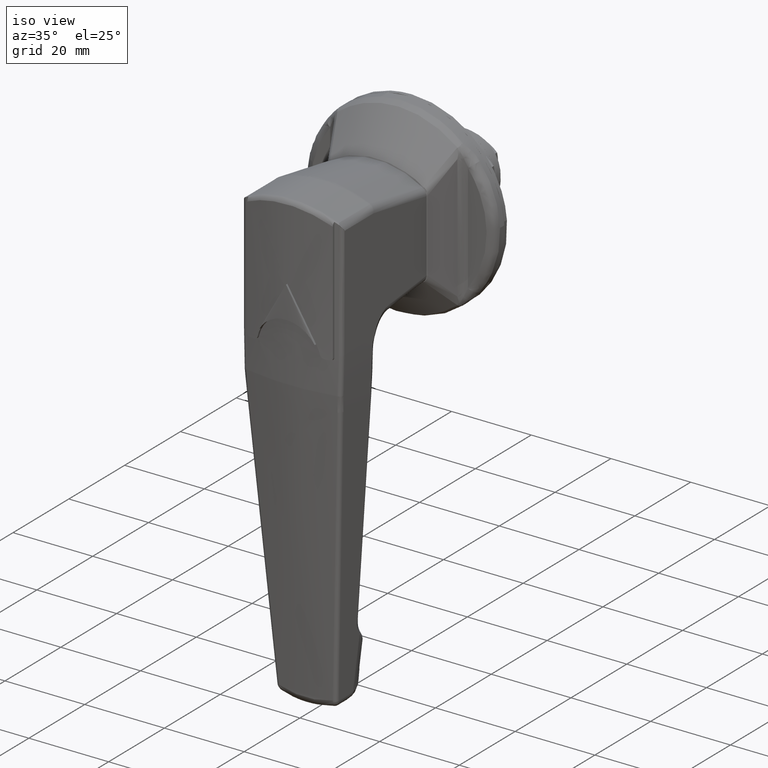
[diagram: clean part render]
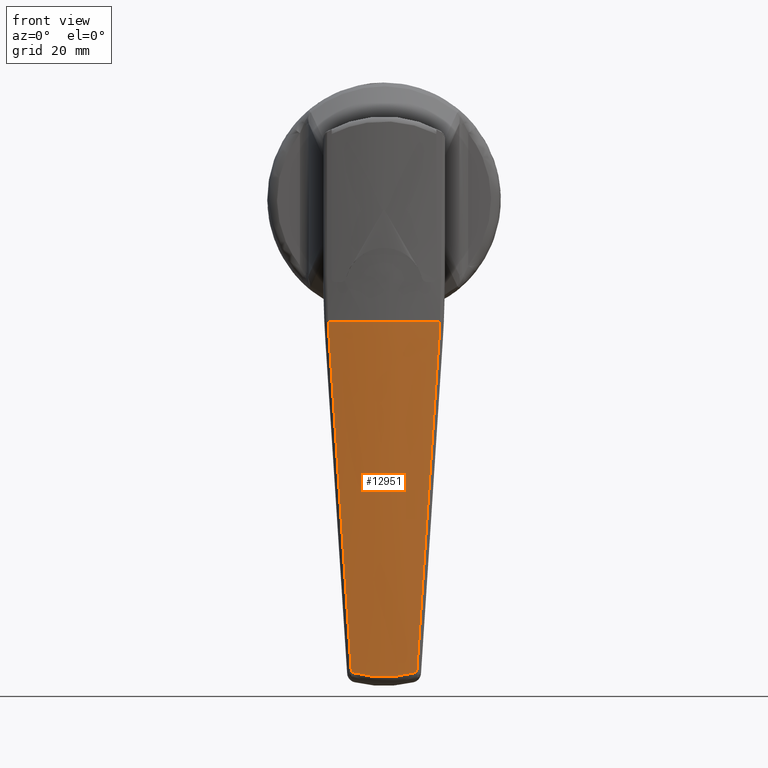
[diagram: tour spotlight — one face highlighted and labeled with its STEP entity id]
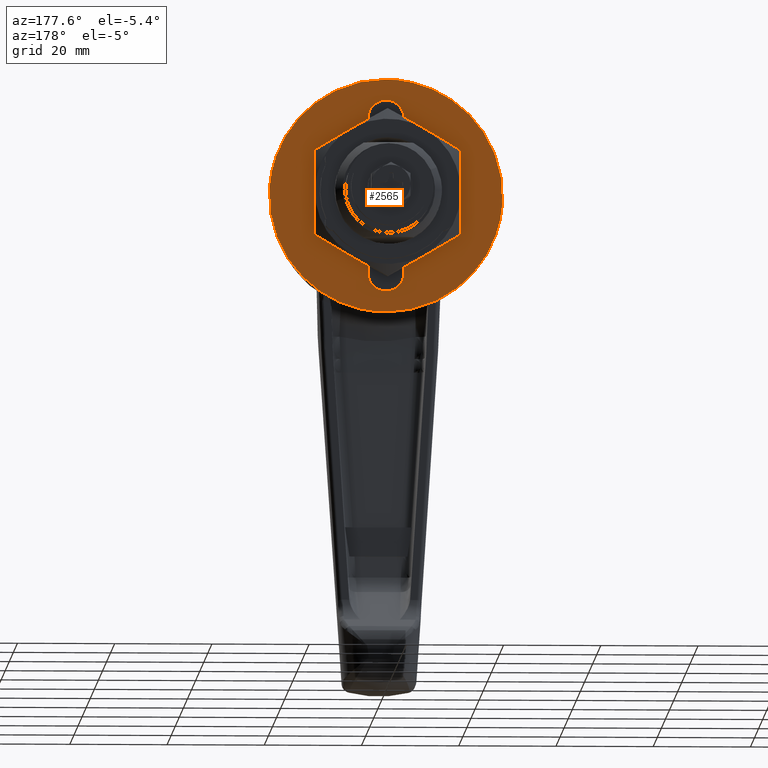
[diagram: tour spotlight — one face highlighted and labeled with its STEP entity id]
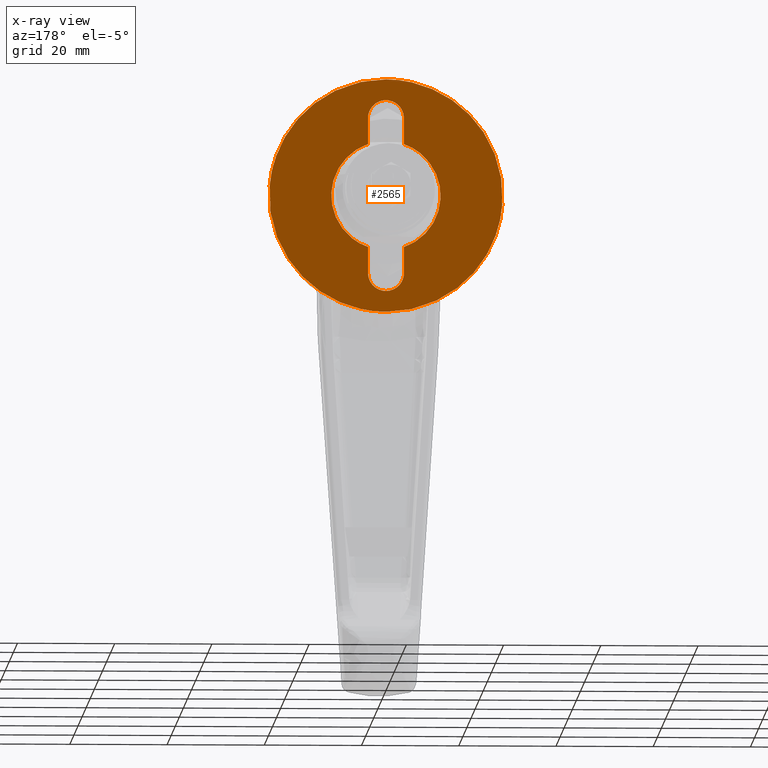
[diagram: x-ray of the same camera — body ghosted, this tour face saturated]
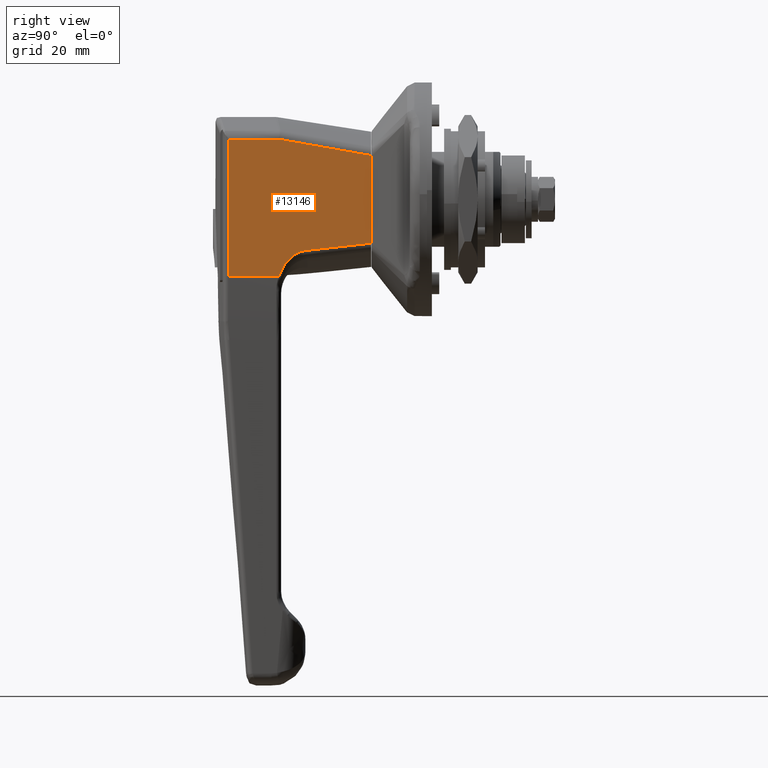
[diagram: tour spotlight — one face highlighted and labeled with its STEP entity id]
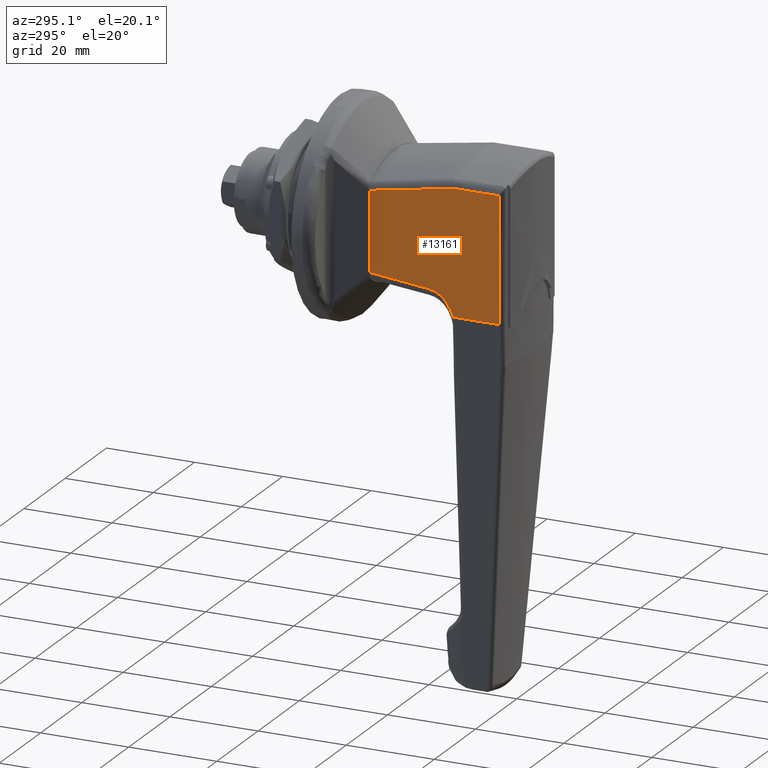
[diagram: tour spotlight — one face highlighted and labeled with its STEP entity id]
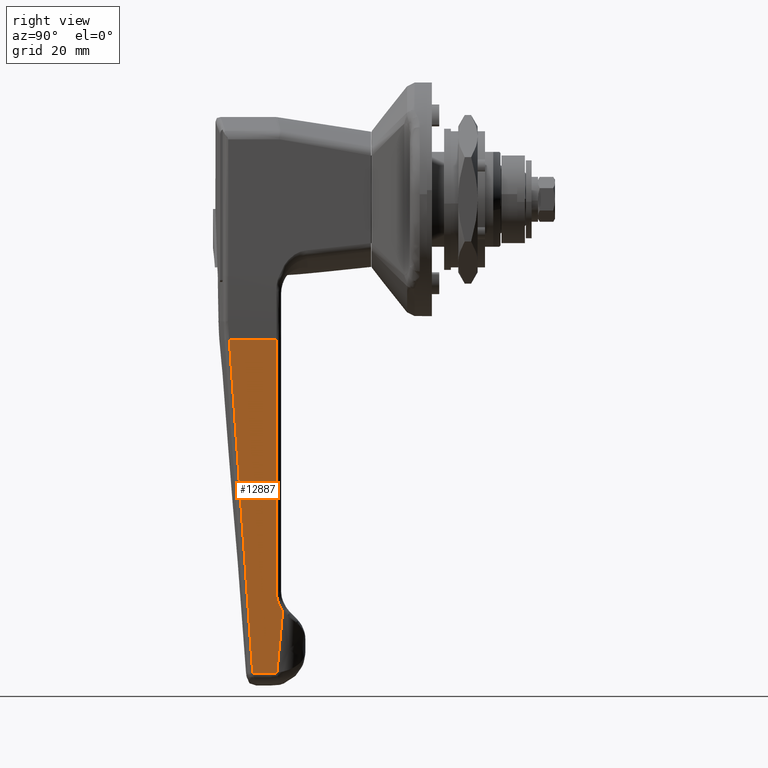
[diagram: tour spotlight — one face highlighted and labeled with its STEP entity id]
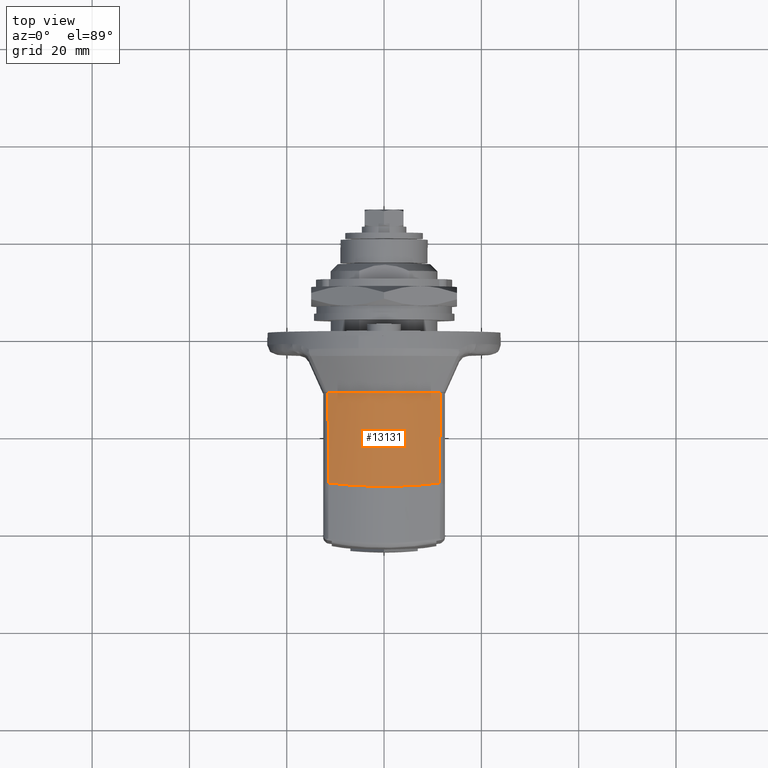
[diagram: tour spotlight — one face highlighted and labeled with its STEP entity id]
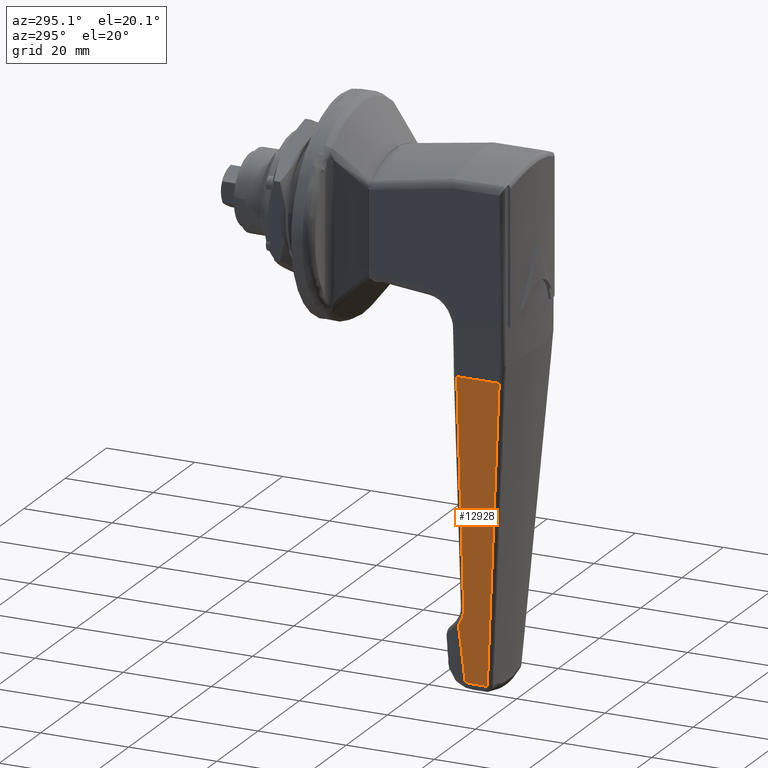
[diagram: tour spotlight — one face highlighted and labeled with its STEP entity id]
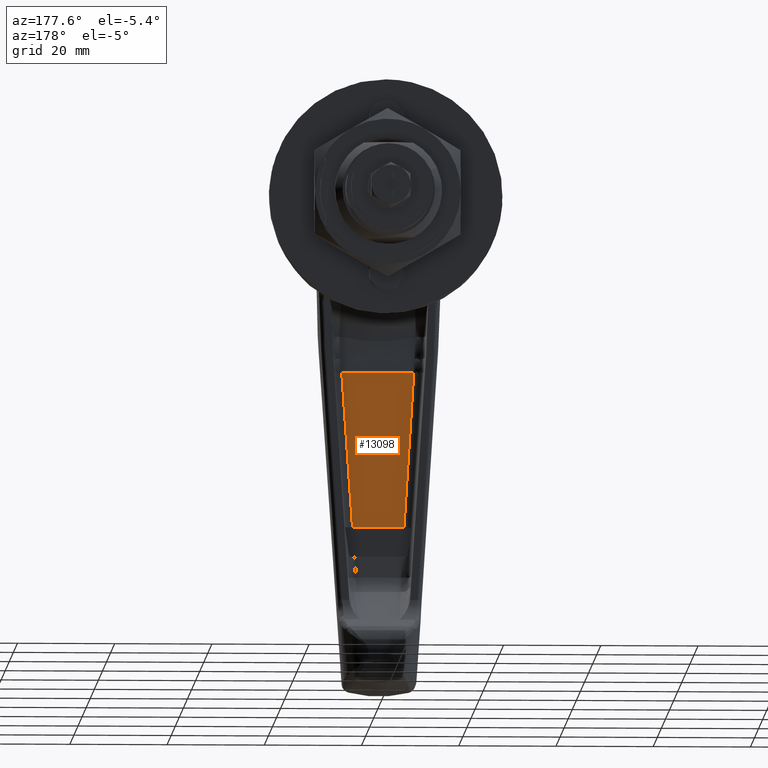
[diagram: tour spotlight — one face highlighted and labeled with its STEP entity id]
A machine part: a face-by-face anatomy tour. The part has 332 B-rep faces; the first image is the clean iso view, then the 8 largest visible faces are spotlighted one at a time (largest first), each with its STEP entity span.

Face 1 — front view, entity #12951. In plain terms, the highlighted face is a freeform B-spline surface patch.
Definition (entity closure, byte-faithful):
#7257=CARTESIAN_POINT('',(-37.843350285108812,6.721442861657440,-97.221635429455205));
#7258=VERTEX_POINT('',#7257);
#7504=CARTESIAN_POINT('',(-37.843350285108762,-6.721442861657480,-97.221635429455205));
#7505=VERTEX_POINT('',#7504);
#7513=CARTESIAN_POINT('',(-37.843350285108812,6.721442861657440,-97.221635429455205));
#7514=CARTESIAN_POINT('',(-37.942343935908319,5.625169215865836,-97.534044564430928));
#7515=CARTESIAN_POINT('',(-38.018337634325022,4.516814986065543,-97.767281904588913));
#7516=CARTESIAN_POINT('',(-38.120764619877200,2.276422541191168,-98.079988281250976));
#7517=CARTESIAN_POINT('',(-38.147213888095500,1.144385008516285,-98.159457032877555));
#7518=CARTESIAN_POINT('',(-38.147216049215537,-1.144244768731521,-98.159463559908417));
#7519=CARTESIAN_POINT('',(-38.120766742579022,-2.276364652141864,-98.079994726793331));
#7520=CARTESIAN_POINT('',(-38.018338691943342,-4.516803311401072,-97.767285168462976));
#7521=CARTESIAN_POINT('',(-37.942343958184708,-5.625168969172814,-97.534044634731913));
#7522=CARTESIAN_POINT('',(-37.843350285108812,-6.721442861657482,-97.221635429455205));
#7523=B_SPLINE_CURVE_WITH_KNOTS('',3,(#7513,#7514,#7515,#7516,#7517,#7518,#7519,#7520,#7521,#7522),.UNSPECIFIED.,.F.,.U.,(4,2,2,2,4),(0.0,0.250000000000000,0.500000000000000,0.750000000000000,1.0),.UNSPECIFIED.);
#7524=EDGE_CURVE('',#7258,#7505,#7523,.T.);
#8258=CARTESIAN_POINT('',(-42.878764277605747,-11.479719629846400,-25.101466616764949));
#8259=VERTEX_POINT('',#8258);
#8290=CARTESIAN_POINT('',(-42.878764277605747,11.479719629846400,-25.101466616764949));
#8291=VERTEX_POINT('',#8290);
#8305=CARTESIAN_POINT('',(-42.878764277605747,-11.479719629846400,-25.101466616764949));
#8306=CARTESIAN_POINT('',(-45.116384859345537,-1.335737E-013,-25.192300907368548));
#8307=CARTESIAN_POINT('',(-42.878764277605782,11.479719629846370,-25.101466616764981));
#8315=(BOUNDED_CURVE()B_SPLINE_CURVE(2,(#8305,#8306,#8307),.UNSPECIFIED.,.F.,.U.)CURVE()GEOMETRIC_REPRESENTATION_ITEM()QUASI_UNIFORM_CURVE()RATIONAL_B_SPLINE_CURVE((1.0,0.981526028015691,1.0))REPRESENTATION_ITEM(''));
#8316=EDGE_CURVE('',#8259,#8291,#8315,.T.);
#8538=CARTESIAN_POINT('',(-42.615893900489901,11.263684811303120,-28.910993423007550));
#8539=VERTEX_POINT('',#8538);
#8553=CARTESIAN_POINT('',(-42.878764277605747,11.479719629846400,-25.101466616764949));
#8554=CARTESIAN_POINT('',(-42.788812769540733,11.420094255378350,-26.371850654162511));
#8555=CARTESIAN_POINT('',(-42.701235748854337,11.348085053353520,-27.641696263652680));
#8556=CARTESIAN_POINT('',(-42.615893900489901,11.263684811303120,-28.910993423007550));
#8557=QUASI_UNIFORM_CURVE('',3,(#8553,#8554,#8555,#8556),.UNSPECIFIED.,.F.,.U.);
#8558=EDGE_CURVE('',#8291,#8539,#8557,.T.);
#8591=CARTESIAN_POINT('',(-42.615893900489901,-11.263684811303120,-28.910993423007650));
#8592=VERTEX_POINT('',#8591);
#8616=CARTESIAN_POINT('',(-42.615893900489901,-11.263684811303120,-28.910993423007650));
#8617=CARTESIAN_POINT('',(-42.701235748854337,-11.348085053353520,-27.641696263652751));
#8618=CARTESIAN_POINT('',(-42.788812769540783,-11.420094255378350,-26.371850654162539));
#8619=CARTESIAN_POINT('',(-42.878764277605796,-11.479719629846400,-25.101466616764949));
#8620=QUASI_UNIFORM_CURVE('',3,(#8616,#8617,#8618,#8619),.UNSPECIFIED.,.F.,.U.);
#8621=EDGE_CURVE('',#8592,#8259,#8620,.T.);
#8821=CARTESIAN_POINT('',(-42.615893900489901,11.263684811303120,-28.910993423007550));
#8822=CARTESIAN_POINT('',(-40.332782749299106,9.005764020021545,-62.867915545464641));
#8823=CARTESIAN_POINT('',(-37.843350285108798,6.721442861657466,-97.221635429455134));
#8831=(BOUNDED_CURVE()B_SPLINE_CURVE(2,(#8821,#8822,#8823),.UNSPECIFIED.,.F.,.U.)CURVE()GEOMETRIC_REPRESENTATION_ITEM()QUASI_UNIFORM_CURVE()RATIONAL_B_SPLINE_CURVE((1.0,0.999266857087292,1.0))REPRESENTATION_ITEM(''));
#8832=EDGE_CURVE('',#8539,#7258,#8831,.T.);
#8886=CARTESIAN_POINT('',(-37.843350285108762,-6.721442861657480,-97.221635429455205));
#8887=CARTESIAN_POINT('',(-40.332782749299028,-9.005764020021500,-62.867915545465507));
#8888=CARTESIAN_POINT('',(-42.615893900489901,-11.263684811303120,-28.910993423007650));
#8896=(BOUNDED_CURVE()B_SPLINE_CURVE(2,(#8886,#8887,#8888),.UNSPECIFIED.,.F.,.U.)CURVE()GEOMETRIC_REPRESENTATION_ITEM()QUASI_UNIFORM_CURVE()RATIONAL_B_SPLINE_CURVE((1.0,0.999266857087362,1.0))REPRESENTATION_ITEM(''));
#8897=EDGE_CURVE('',#7505,#8592,#8896,.T.);
#12929=CARTESIAN_POINT('',(-36.667663605845746,-12.599512268247643,-99.878121339456470));
#12930=CARTESIAN_POINT('',(-42.803238817942280,-12.599512268247643,-23.168838253154167));
#12931=CARTESIAN_POINT('',(-39.365767490477445,0.002734485896569,-100.093928587916650));
#12932=CARTESIAN_POINT('',(-45.501342702573972,0.002734485896569,-23.384645501614351));
#12933=CARTESIAN_POINT('',(-36.666544125904963,12.604739976983421,-99.878031798098490));
#12934=CARTESIAN_POINT('',(-42.802119338001489,12.604739976983421,-23.168748711796212));
#12942=(BOUNDED_SURFACE()B_SPLINE_SURFACE(1,2,((#12929,#12931,#12933),(#12930,#12932,#12934)),.UNSPECIFIED.,.F.,.F.,.U.)B_SPLINE_SURFACE_WITH_KNOTS((2,2),(3,3),(0.0,76.954268203899900),(0.0,25.488490266353271),.UNSPECIFIED.)GEOMETRIC_REPRESENTATION_ITEM()RATIONAL_B_SPLINE_SURFACE(((0.998829166442929,0.974166726557551,0.993961742774376),(0.998829166442929,0.974166726557551,0.993961742774376)))REPRESENTATION_ITEM('')SURFACE());
#12943=ORIENTED_EDGE('',*,*,#8832,.T.);
#12944=ORIENTED_EDGE('',*,*,#7524,.T.);
#12945=ORIENTED_EDGE('',*,*,#8897,.T.);
#12946=ORIENTED_EDGE('',*,*,#8621,.T.);
#12947=ORIENTED_EDGE('',*,*,#8316,.T.);
#12948=ORIENTED_EDGE('',*,*,#8558,.T.);
#12949=EDGE_LOOP('',(#12943,#12944,#12945,#12946,#12947,#12948));
#12950=FACE_OUTER_BOUND('',#12949,.T.);
#12951=ADVANCED_FACE('',(#12950),#12942,.T.);

Face 2 — auxiliary view, entity #2565. An x-ray twin of the same camera follows (body ghosted, this face saturated) — the face is partly hidden behind the body. In plain terms, the highlighted face is a freeform B-spline surface patch.
Definition (entity closure, byte-faithful):
#2195=CARTESIAN_POINT('',(-2.255141E-017,-23.926018432789849,1.882983524670908));
#2196=VERTEX_POINT('',#2195);
#2202=CARTESIAN_POINT('',(0.0,0.000000313432878,24.0));
#2203=VERTEX_POINT('',#2202);
#2204=CARTESIAN_POINT('',(0.0,0.000000313432878,24.0));
#2205=CARTESIAN_POINT('',(0.0,-22.185403829121775,24.000000000000007));
#2206=CARTESIAN_POINT('',(-2.255141E-017,-23.926018432789842,1.882983524670908));
#2214=(BOUNDED_CURVE()B_SPLINE_CURVE(2,(#2204,#2205,#2206),.UNSPECIFIED.,.F.,.U.)B_SPLINE_CURVE_WITH_KNOTS((3,3),(0.0,0.236331549772029),.UNSPECIFIED.)CURVE()GEOMETRIC_REPRESENTATION_ITEM()RATIONAL_B_SPLINE_CURVE((1.0,0.723120366720395,0.969723876107031))REPRESENTATION_ITEM(''));
#2215=EDGE_CURVE('',#2203,#2196,#2214,.T.);
#2217=CARTESIAN_POINT('',(-2.255141E-017,23.926019059655601,-1.882983524670904));
#2218=VERTEX_POINT('',#2217);
#2219=CARTESIAN_POINT('',(-2.255141E-017,23.926019059655598,-1.882983524670904));
#2220=CARTESIAN_POINT('',(0.0,24.000000313432878,-0.942945101103090));
#2221=CARTESIAN_POINT('',(0.0,24.000000313432881,1.919159E-023));
#2222=CARTESIAN_POINT('',(0.0,24.000000313432871,23.999999999999996));
#2223=CARTESIAN_POINT('',(0.0,0.000000313432878,24.0));
#2231=(BOUNDED_CURVE()B_SPLINE_CURVE(2,(#2219,#2220,#2221,#2222,#2223),.UNSPECIFIED.,.F.,.U.)B_SPLINE_CURVE_WITH_KNOTS((3,2,3),(0.736331549772029,0.750000000000000,1.0),.UNSPECIFIED.)CURVE()GEOMETRIC_REPRESENTATION_ITEM()RATIONAL_B_SPLINE_CURVE((0.969723876107031,0.983986414466153,1.0,0.707106781186548,1.0))REPRESENTATION_ITEM(''));
#2232=EDGE_CURVE('',#2218,#2203,#2231,.T.);
#2312=CARTESIAN_POINT('',(0.0,0.000000313432878,-24.0));
#2313=VERTEX_POINT('',#2312);
#2314=CARTESIAN_POINT('',(0.0,0.000000313432878,-24.0));
#2315=CARTESIAN_POINT('',(0.0,22.185404455987538,-24.000000000000007));
#2316=CARTESIAN_POINT('',(-2.255141E-017,23.926019059655598,-1.882983524670904));
#2324=(BOUNDED_CURVE()B_SPLINE_CURVE(2,(#2314,#2315,#2316),.UNSPECIFIED.,.F.,.U.)B_SPLINE_CURVE_WITH_KNOTS((3,3),(0.500000000000000,0.736331549772029),.UNSPECIFIED.)CURVE()GEOMETRIC_REPRESENTATION_ITEM()RATIONAL_B_SPLINE_CURVE((1.0,0.723120366720395,0.969723876107031))REPRESENTATION_ITEM(''));
#2325=EDGE_CURVE('',#2313,#2218,#2324,.T.);
#2327=CARTESIAN_POINT('',(-2.255141E-017,-23.926018432789842,1.882983524670908));
#2328=CARTESIAN_POINT('',(0.0,-23.999999686567119,0.942945101103092));
#2329=CARTESIAN_POINT('',(0.0,-23.999999686567119,1.919159E-023));
#2330=CARTESIAN_POINT('',(0.0,-23.999999686567126,-23.999999999999996));
#2331=CARTESIAN_POINT('',(0.0,0.000000313432878,-24.0));
#2339=(BOUNDED_CURVE()B_SPLINE_CURVE(2,(#2327,#2328,#2329,#2330,#2331),.UNSPECIFIED.,.F.,.U.)B_SPLINE_CURVE_WITH_KNOTS((3,2,3),(0.236331549772029,0.250000000000000,0.500000000000000),.UNSPECIFIED.)CURVE()GEOMETRIC_REPRESENTATION_ITEM()RATIONAL_B_SPLINE_CURVE((0.969723876107031,0.983986414466153,1.0,0.707106781186548,1.0))REPRESENTATION_ITEM(''));
#2340=EDGE_CURVE('',#2196,#2313,#2339,.T.);
#2456=CARTESIAN_POINT('',(0.0,-26.390274202601141,26.397599906966690));
#2457=CARTESIAN_POINT('',(0.0,26.390275687773769,26.397599906966690));
#2458=CARTESIAN_POINT('',(0.0,-26.390274202601141,-26.397601194427011));
#2459=CARTESIAN_POINT('',(0.0,26.390275687773769,-26.397601194427011));
#2460=B_SPLINE_SURFACE_WITH_KNOTS('',1,1,((#2456,#2458),(#2457,#2459)),.UNSPECIFIED.,.F.,.F.,.U.,(2,2),(2,2),(0.0,52.780549890374907),(0.0,52.795201101393701),.UNSPECIFIED.);
#2461=ORIENTED_EDGE('',*,*,#2215,.T.);
#2462=ORIENTED_EDGE('',*,*,#2340,.T.);
#2463=ORIENTED_EDGE('',*,*,#2325,.T.);
#2464=ORIENTED_EDGE('',*,*,#2232,.T.);
#2465=EDGE_LOOP('',(#2461,#2462,#2463,#2464));
#2466=FACE_OUTER_BOUND('',#2465,.T.);
#2467=CARTESIAN_POINT('',(0.0,-3.700000000000000,10.624146915427920));
#2468=VERTEX_POINT('',#2467);
#2469=CARTESIAN_POINT('',(0.0,-3.700000000000000,-10.624146915427920));
#2470=VERTEX_POINT('',#2469);
#2471=CARTESIAN_POINT('',(0.0,-3.700000000000004,10.624146915427920));
#2472=CARTESIAN_POINT('',(0.0,-11.249999686567117,7.994759216905932));
#2473=CARTESIAN_POINT('',(0.0,-11.249999686567120,1.919159E-023));
#2474=CARTESIAN_POINT('',(0.0,-11.249999686567117,-7.994759216905935));
#2475=CARTESIAN_POINT('',(0.0,-3.700000000000001,-10.624146915427920));
#2483=(BOUNDED_CURVE()B_SPLINE_CURVE(2,(#2471,#2472,#2473,#2474,#2475),.UNSPECIFIED.,.F.,.U.)B_SPLINE_CURVE_WITH_KNOTS((3,2,3),(0.0,0.500000000000000,1.0),.UNSPECIFIED.)CURVE()GEOMETRIC_REPRESENTATION_ITEM()RATIONAL_B_SPLINE_CURVE((1.0,0.815134625920648,1.0,0.815134625920648,1.0))REPRESENTATION_ITEM(''));
#2484=EDGE_CURVE('',#2468,#2470,#2483,.T.);
#2485=ORIENTED_EDGE('',*,*,#2484,.F.);
#2486=CARTESIAN_POINT('',(0.0,-3.700000000000000,16.0));
#2487=VERTEX_POINT('',#2486);
#2488=CARTESIAN_POINT('',(0.0,-3.700000000000000,16.0));
#2489=CARTESIAN_POINT('',(0.0,-3.700000000000000,10.624146915427920));
#2490=QUASI_UNIFORM_CURVE('',1,(#2488,#2489),.UNSPECIFIED.,.F.,.U.);
#2491=EDGE_CURVE('',#2487,#2468,#2490,.T.);
#2492=ORIENTED_EDGE('',*,*,#2491,.F.);
#2493=CARTESIAN_POINT('',(0.0,3.700000000000000,16.0));
#2494=VERTEX_POINT('',#2493);
#2495=CARTESIAN_POINT('',(0.0,3.699999999999999,16.0));
#2496=CARTESIAN_POINT('',(0.0,3.699999999999999,19.700000000000006));
#2497=CARTESIAN_POINT('',(0.0,-9.619438E-016,19.699999999999999));
#2498=CARTESIAN_POINT('',(0.0,-3.700000000000001,19.700000000000006));
#2499=CARTESIAN_POINT('',(0.0,-3.700000000000001,16.0));
#2507=(BOUNDED_CURVE()B_SPLINE_CURVE(2,(#2495,#2496,#2497,#2498,#2499),.UNSPECIFIED.,.F.,.U.)B_SPLINE_CURVE_WITH_KNOTS((3,2,3),(0.0,0.500000000000000,1.0),.UNSPECIFIED.)CURVE()GEOMETRIC_REPRESENTATION_ITEM()RATIONAL_B_SPLINE_CURVE((1.0,0.707106781186548,1.0,0.707106781186548,1.0))REPRESENTATION_ITEM(''));
#2508=EDGE_CURVE('',#2494,#2487,#2507,.T.);
#2509=ORIENTED_EDGE('',*,*,#2508,.F.);
#2510=CARTESIAN_POINT('',(0.0,3.700000000000000,10.624146915427920));
#2511=VERTEX_POINT('',#2510);
#2512=CARTESIAN_POINT('',(0.0,3.700000000000000,10.624146915427920));
#2513=CARTESIAN_POINT('',(0.0,3.700000000000000,16.0));
#2514=QUASI_UNIFORM_CURVE('',1,(#2512,#2513),.UNSPECIFIED.,.F.,.U.);
#2515=EDGE_CURVE('',#2511,#2494,#2514,.T.);
#2516=ORIENTED_EDGE('',*,*,#2515,.F.);
#2517=CARTESIAN_POINT('',(0.0,3.700000000000000,-10.624146915427920));
#2518=VERTEX_POINT('',#2517);
#2519=CARTESIAN_POINT('',(0.0,3.699999999999998,-10.624146915427920));
#2520=CARTESIAN_POINT('',(0.0,11.249999686567120,-7.994759216905933));
#2521=CARTESIAN_POINT('',(0.0,11.249999686567120,-1.919159E-023));
#2522=CARTESIAN_POINT('',(0.0,11.249999686567120,7.994759216905930));
#2523=CARTESIAN_POINT('',(0.0,3.700000000000007,10.624146915427920));
#2531=(BOUNDED_CURVE()B_SPLINE_CURVE(2,(#2519,#2520,#2521,#2522,#2523),.UNSPECIFIED.,.F.,.U.)B_SPLINE_CURVE_WITH_KNOTS((3,2,3),(0.0,0.500000000000000,1.0),.UNSPECIFIED.)CURVE()GEOMETRIC_REPRESENTATION_ITEM()RATIONAL_B_SPLINE_CURVE((1.0,0.815134625920648,1.0,0.815134625920648,1.0))REPRESENTATION_ITEM(''));
#2532=EDGE_CURVE('',#2518,#2511,#2531,.T.);
#2533=ORIENTED_EDGE('',*,*,#2532,.F.);
#2534=CARTESIAN_POINT('',(0.0,3.700000000000000,-16.0));
#2535=VERTEX_POINT('',#2534);
#2536=CARTESIAN_POINT('',(0.0,3.700000000000000,-16.0));
#2537=CARTESIAN_POINT('',(0.0,3.700000000000000,-10.624146915427920));
#2538=QUASI_UNIFORM_CURVE('',1,(#2536,#2537),.UNSPECIFIED.,.F.,.U.);
#2539=EDGE_CURVE('',#2535,#2518,#2538,.T.);
#2540=ORIENTED_EDGE('',*,*,#2539,.F.);
#2541=CARTESIAN_POINT('',(0.0,-3.700000000000000,-16.0));
#2542=VERTEX_POINT('',#2541);
#2543=CARTESIAN_POINT('',(0.0,-3.699999999999999,-16.0));
#2544=CARTESIAN_POINT('',(0.0,-3.699999999999999,-19.700000000000006));
#2545=CARTESIAN_POINT('',(0.0,9.619438E-016,-19.699999999999999));
#2546=CARTESIAN_POINT('',(0.0,3.700000000000001,-19.700000000000006));
#2547=CARTESIAN_POINT('',(0.0,3.700000000000001,-16.0));
#2555=(BOUNDED_CURVE()B_SPLINE_CURVE(2,(#2543,#2544,#2545,#2546,#2547),.UNSPECIFIED.,.F.,.U.)B_SPLINE_CURVE_WITH_KNOTS((3,2,3),(0.0,0.500000000000000,1.0),.UNSPECIFIED.)CURVE()GEOMETRIC_REPRESENTATION_ITEM()RATIONAL_B_SPLINE_CURVE((1.0,0.707106781186548,1.0,0.707106781186548,1.0))REPRESENTATION_ITEM(''));
#2556=EDGE_CURVE('',#2542,#2535,#2555,.T.);
#2557=ORIENTED_EDGE('',*,*,#2556,.F.);
#2558=CARTESIAN_POINT('',(0.0,-3.700000000000000,-10.624146915427920));
#2559=CARTESIAN_POINT('',(0.0,-3.700000000000000,-16.0));
#2560=QUASI_UNIFORM_CURVE('',1,(#2558,#2559),.UNSPECIFIED.,.F.,.U.);
#2561=EDGE_CURVE('',#2470,#2542,#2560,.T.);
#2562=ORIENTED_EDGE('',*,*,#2561,.F.);
#2563=EDGE_LOOP('',(#2485,#2492,#2509,#2516,#2533,#2540,#2557,#2562));
#2564=FACE_BOUND('',#2563,.T.);
#2565=ADVANCED_FACE('',(#2466,#2564),#2460,.F.);

Face 3 — right view, entity #13146. In plain terms, the highlighted face is a freeform B-spline surface patch.
Definition (entity closure, byte-faithful):
#5364=CARTESIAN_POINT('',(-12.500000000000000,-12.500000000000000,-9.011410562829580));
#5365=VERTEX_POINT('',#5364);
#5388=CARTESIAN_POINT('',(-25.758472494422051,-12.500000000000000,-10.478856147320140));
#5389=VERTEX_POINT('',#5388);
#5390=CARTESIAN_POINT('',(-25.758472494422051,-12.500000000000000,-10.478856147320160));
#5391=CARTESIAN_POINT('',(-21.338430364427520,-12.500000000000000,-9.994688639473511));
#5392=CARTESIAN_POINT('',(-16.918892132413259,-12.500000000000000,-9.505968378474428));
#5393=CARTESIAN_POINT('',(-12.500000000000000,-12.500000000000000,-9.011410562829610));
#5394=QUASI_UNIFORM_CURVE('',3,(#5390,#5391,#5392,#5393),.UNSPECIFIED.,.F.,.U.);
#5395=EDGE_CURVE('',#5389,#5365,#5394,.T.);
#5480=CARTESIAN_POINT('',(-31.440940997919050,-12.500000000000000,-15.848482385090501));
#5481=VERTEX_POINT('',#5480);
#5518=CARTESIAN_POINT('',(-31.440940997919050,-12.500000000000000,-15.848482385090501));
#5519=CARTESIAN_POINT('',(-30.979988675860099,-12.500000000000000,-14.646180813915000));
#5520=CARTESIAN_POINT('',(-30.473664453538301,-12.500000000000000,-13.790848530223940));
#5521=CARTESIAN_POINT('',(-29.837339934693301,-12.500000000000000,-12.715907060157020));
#5522=CARTESIAN_POINT('',(-29.023392715502350,-12.500000000000000,-11.987795283148969));
#5523=CARTESIAN_POINT('',(-27.557166121352399,-12.500000000000000,-10.676190764094979));
#5524=CARTESIAN_POINT('',(-25.758472494422051,-12.500000000000000,-10.478856147320140));
#5525=B_SPLINE_CURVE_WITH_KNOTS('',2,(#5518,#5519,#5520,#5521,#5522,#5523,#5524),.UNSPECIFIED.,.F.,.U.,(3,2,2,3),(0.0,0.285714285714285,0.571428571428571,1.0),.UNSPECIFIED.);
#5526=EDGE_CURVE('',#5481,#5389,#5525,.T.);
#8674=CARTESIAN_POINT('',(-41.858712451275153,-12.500000000000000,-15.848482385090501));
#8675=VERTEX_POINT('',#8674);
#8931=CARTESIAN_POINT('',(-41.858712451275203,-12.500000000000000,12.332614929181361));
#8932=VERTEX_POINT('',#8931);
#8959=CARTESIAN_POINT('',(-41.858712451275203,-12.500000000000000,12.332614929181361));
#8960=CARTESIAN_POINT('',(-41.858712451275153,-12.500000000000000,-15.848482385090501));
#8961=QUASI_UNIFORM_CURVE('',1,(#8959,#8960),.UNSPECIFIED.,.F.,.U.);
#8962=EDGE_CURVE('',#8932,#8675,#8961,.T.);
#9253=CARTESIAN_POINT('',(-31.397209567573899,-12.500000000000000,12.332614929181361));
#9254=VERTEX_POINT('',#9253);
#9420=CARTESIAN_POINT('',(-31.397209567573899,-12.500000000000000,12.332614929181361));
#9421=CARTESIAN_POINT('',(-41.858712451275203,-12.500000000000000,12.332614929181361));
#9422=QUASI_UNIFORM_CURVE('',1,(#9420,#9421),.UNSPECIFIED.,.F.,.U.);
#9423=EDGE_CURVE('',#9254,#8932,#9422,.T.);
#9469=CARTESIAN_POINT('',(-12.500000000000000,-12.500000000000000,8.994391568174329));
#9470=VERTEX_POINT('',#9469);
#9501=CARTESIAN_POINT('',(-12.500000000000000,-12.500000000000000,8.994391568174329));
#9502=CARTESIAN_POINT('',(-15.647261801330190,-12.500000000000000,9.563549309974148));
#9503=CARTESIAN_POINT('',(-18.795878208031240,-12.500000000000000,10.125120313837289));
#9504=CARTESIAN_POINT('',(-25.095151900969920,-12.500000000000000,11.236831968091421));
#9505=CARTESIAN_POINT('',(-28.245791829713770,-12.500000000000000,11.786949721332290));
#9506=CARTESIAN_POINT('',(-31.397209567573899,-12.500000000000000,12.332614929181380));
#9507=B_SPLINE_CURVE_WITH_KNOTS('',3,(#9501,#9502,#9503,#9504,#9505,#9506),.UNSPECIFIED.,.F.,.U.,(4,2,4),(0.0,0.500000000000000,1.0),.UNSPECIFIED.);
#9508=EDGE_CURVE('',#9470,#9254,#9507,.T.);
#12808=CARTESIAN_POINT('',(-12.500000000000000,-12.500000000000000,-9.011410562829580));
#12809=CARTESIAN_POINT('',(-12.500000000000000,-12.500000000000000,8.994391568174329));
#12810=QUASI_UNIFORM_CURVE('',1,(#12808,#12809),.UNSPECIFIED.,.F.,.U.);
#12811=EDGE_CURVE('',#5365,#9470,#12810,.T.);
#12968=CARTESIAN_POINT('',(-31.440940997919050,-12.500000000000000,-15.848482385090501));
#12969=CARTESIAN_POINT('',(-41.858712451275153,-12.500000000000000,-15.848482385090501));
#12970=QUASI_UNIFORM_CURVE('',1,(#12968,#12969),.UNSPECIFIED.,.F.,.U.);
#12971=EDGE_CURVE('',#5481,#8675,#12970,.T.);
#13132=CARTESIAN_POINT('',(-43.325178978919162,-12.500000000000000,-17.256127876773959));
#13133=CARTESIAN_POINT('',(-43.325178978919162,-12.500000000000000,13.740261428699400));
#13134=CARTESIAN_POINT('',(-11.033531634944630,-12.500000000000000,-17.256127876773959));
#13135=CARTESIAN_POINT('',(-11.033531634944630,-12.500000000000000,13.740261428699400));
#13136=B_SPLINE_SURFACE_WITH_KNOTS('',1,1,((#13132,#13134),(#13133,#13135)),.UNSPECIFIED.,.F.,.F.,.U.,(2,2),(2,2),(0.0,30.996389305473372),(0.0,32.291647343974539),.UNSPECIFIED.);
#13137=ORIENTED_EDGE('',*,*,#5526,.T.);
#13138=ORIENTED_EDGE('',*,*,#5395,.T.);
#13139=ORIENTED_EDGE('',*,*,#12811,.T.);
#13140=ORIENTED_EDGE('',*,*,#9508,.T.);
#13141=ORIENTED_EDGE('',*,*,#9423,.T.);
#13142=ORIENTED_EDGE('',*,*,#8962,.T.);
#13143=ORIENTED_EDGE('',*,*,#12971,.F.);
#13144=EDGE_LOOP('',(#13137,#13138,#13139,#13140,#13141,#13142,#13143));
#13145=FACE_OUTER_BOUND('',#13144,.T.);
#13146=ADVANCED_FACE('',(#13145),#13136,.F.);

Face 4 — auxiliary view, entity #13161. In plain terms, the highlighted face is a freeform B-spline surface patch.
Definition (entity closure, byte-faithful):
#6726=CARTESIAN_POINT('',(-31.440940997918950,12.500000000000000,-15.848482385090350));
#6727=VERTEX_POINT('',#6726);
#6823=CARTESIAN_POINT('',(-25.758472494422051,12.500000000000000,-10.478856147320119));
#6824=VERTEX_POINT('',#6823);
#6857=CARTESIAN_POINT('',(-25.758472494422051,12.500000000000000,-10.478856147320119));
#6858=CARTESIAN_POINT('',(-26.964024350658839,12.500000000000000,-10.611114079313030));
#6859=CARTESIAN_POINT('',(-28.057582371419901,12.500000000000000,-11.271604073828991));
#6860=CARTESIAN_POINT('',(-29.055146826098898,12.500000000000000,-11.874115626659970));
#6861=CARTESIAN_POINT('',(-29.825635950977048,12.500000000000000,-12.841350418345000));
#6862=CARTESIAN_POINT('',(-30.717082000110850,12.500000000000000,-13.960428684074991));
#6863=CARTESIAN_POINT('',(-31.440940997918950,12.500000000000000,-15.848482385090350));
#6864=B_SPLINE_CURVE_WITH_KNOTS('',2,(#6857,#6858,#6859,#6860,#6861,#6862,#6863),.UNSPECIFIED.,.F.,.U.,(3,2,2,3),(0.0,0.285714285714285,0.571428571428571,1.0),.UNSPECIFIED.);
#6865=EDGE_CURVE('',#6824,#6727,#6864,.T.);
#6892=CARTESIAN_POINT('',(-12.500000000000000,12.500000000000000,-9.011410562829541));
#6893=VERTEX_POINT('',#6892);
#6922=CARTESIAN_POINT('',(-12.500000000000000,12.500000000000000,-9.011410562829541));
#6923=CARTESIAN_POINT('',(-16.918892132413259,12.500000000000000,-9.505968378474359));
#6924=CARTESIAN_POINT('',(-21.338430364427520,12.500000000000000,-9.994688639473488));
#6925=CARTESIAN_POINT('',(-25.758472494422051,12.500000000000000,-10.478856147320140));
#6926=QUASI_UNIFORM_CURVE('',3,(#6922,#6923,#6924,#6925),.UNSPECIFIED.,.F.,.U.);
#6927=EDGE_CURVE('',#6893,#6824,#6926,.T.);
#8483=CARTESIAN_POINT('',(-41.858712451275153,12.500000000000000,-15.848482385090350));
#8484=VERTEX_POINT('',#8483);
#8729=CARTESIAN_POINT('',(-41.858712451275203,12.500000000000000,12.332614929181240));
#8730=VERTEX_POINT('',#8729);
#8750=CARTESIAN_POINT('',(-41.858712451275153,12.500000000000000,-15.848482385090350));
#8751=CARTESIAN_POINT('',(-41.858712451275203,12.500000000000000,12.332614929181240));
#8752=QUASI_UNIFORM_CURVE('',1,(#8750,#8751),.UNSPECIFIED.,.F.,.U.);
#8753=EDGE_CURVE('',#8484,#8730,#8752,.T.);
#9197=CARTESIAN_POINT('',(-31.397209567573199,12.500000000000000,12.332614929181220));
#9198=VERTEX_POINT('',#9197);
#9323=CARTESIAN_POINT('',(-12.500000000000000,12.500000000000000,8.994391568174301));
#9324=VERTEX_POINT('',#9323);
#9347=CARTESIAN_POINT('',(-31.397209567573199,12.500000000000000,12.332614929181220));
#9348=CARTESIAN_POINT('',(-28.245791829713198,12.500000000000000,11.786949721332149));
#9349=CARTESIAN_POINT('',(-25.095151900969459,12.500000000000000,11.236831968091311));
#9350=CARTESIAN_POINT('',(-18.795878208030999,12.500000000000000,10.125120313837209));
#9351=CARTESIAN_POINT('',(-15.647261801330060,12.500000000000000,9.563549309974155));
#9352=CARTESIAN_POINT('',(-12.500000000000000,12.500000000000000,8.994391568174301));
#9353=B_SPLINE_CURVE_WITH_KNOTS('',3,(#9347,#9348,#9349,#9350,#9351,#9352),.UNSPECIFIED.,.F.,.U.,(4,2,4),(0.0,0.500000000000000,1.0),.UNSPECIFIED.);
#9354=EDGE_CURVE('',#9198,#9324,#9353,.T.);
#9391=CARTESIAN_POINT('',(-41.858712451275203,12.500000000000000,12.332614929181240));
#9392=CARTESIAN_POINT('',(-31.397209567573199,12.500000000000000,12.332614929181220));
#9393=QUASI_UNIFORM_CURVE('',1,(#9391,#9392),.UNSPECIFIED.,.F.,.U.);
#9394=EDGE_CURVE('',#8730,#9198,#9393,.T.);
#12788=CARTESIAN_POINT('',(-12.500000000000000,12.500000000000000,8.994391568174301));
#12789=CARTESIAN_POINT('',(-12.500000000000000,12.500000000000000,-9.011410562829541));
#12790=QUASI_UNIFORM_CURVE('',1,(#12788,#12789),.UNSPECIFIED.,.F.,.U.);
#12791=EDGE_CURVE('',#9324,#6893,#12790,.T.);
#12998=CARTESIAN_POINT('',(-31.440940997918950,12.500000000000000,-15.848482385090350));
#12999=CARTESIAN_POINT('',(-41.858712451275153,12.500000000000000,-15.848482385090350));
#13000=QUASI_UNIFORM_CURVE('',1,(#12998,#12999),.UNSPECIFIED.,.F.,.U.);
#13001=EDGE_CURVE('',#6727,#8484,#13000,.T.);
#13147=CARTESIAN_POINT('',(-11.033532474851629,12.500000000000000,-17.256127876773810));
#13148=CARTESIAN_POINT('',(-43.325178663986847,12.500000000000000,-17.256127876773810));
#13149=CARTESIAN_POINT('',(-11.033532474851629,12.500000000000000,13.740261428699259));
#13150=CARTESIAN_POINT('',(-43.325178663986847,12.500000000000000,13.740261428699259));
#13151=B_SPLINE_SURFACE_WITH_KNOTS('',1,1,((#13147,#13149),(#13148,#13150)),.UNSPECIFIED.,.F.,.F.,.U.,(2,2),(2,2),(0.0,32.291646189135221),(0.0,30.996389305473070),.UNSPECIFIED.);
#13152=ORIENTED_EDGE('',*,*,#6927,.T.);
#13153=ORIENTED_EDGE('',*,*,#6865,.T.);
#13154=ORIENTED_EDGE('',*,*,#13001,.T.);
#13155=ORIENTED_EDGE('',*,*,#8753,.T.);
#13156=ORIENTED_EDGE('',*,*,#9394,.T.);
#13157=ORIENTED_EDGE('',*,*,#9354,.T.);
#13158=ORIENTED_EDGE('',*,*,#12791,.T.);
#13159=EDGE_LOOP('',(#13152,#13153,#13154,#13155,#13156,#13157,#13158));
#13160=FACE_OUTER_BOUND('',#13159,.T.);
#13161=ADVANCED_FACE('',(#13160),#13151,.T.);

Face 5 — right view, entity #12887. In plain terms, the highlighted face is a freeform B-spline surface patch.
Definition (entity closure, byte-faithful):
#5642=CARTESIAN_POINT('',(-32.0,-12.073825860416800,-28.897928022205701));
#5643=VERTEX_POINT('',#5642);
#5703=CARTESIAN_POINT('',(-32.0,-8.694515336386020,-80.579964853946592));
#5704=VERTEX_POINT('',#5703);
#5726=CARTESIAN_POINT('',(-32.0,-8.694515336386020,-80.579964853946592));
#5727=CARTESIAN_POINT('',(-32.0,-12.073825860416800,-28.897928022205701));
#5728=QUASI_UNIFORM_CURVE('',1,(#5726,#5727),.UNSPECIFIED.,.F.,.U.);
#5729=EDGE_CURVE('',#5704,#5643,#5728,.T.);
#5792=CARTESIAN_POINT('',(-30.691652699142050,-8.428069406423770,-84.654899154318798));
#5793=VERTEX_POINT('',#5792);
#5825=CARTESIAN_POINT('',(-30.691652699142050,-8.428069406423614,-84.654899154318699));
#5826=CARTESIAN_POINT('',(-32.000000033490430,-8.547558788241252,-82.827468798869972));
#5827=CARTESIAN_POINT('',(-32.0,-8.694515336386020,-80.579964853946592));
#5835=(BOUNDED_CURVE()B_SPLINE_CURVE(2,(#5825,#5826,#5827),.UNSPECIFIED.,.F.,.U.)CURVE()GEOMETRIC_REPRESENTATION_ITEM()QUASI_UNIFORM_CURVE()RATIONAL_B_SPLINE_CURVE((1.0,0.952127416383993,1.0))REPRESENTATION_ITEM(''));
#5836=EDGE_CURVE('',#5793,#5704,#5835,.T.);
#7619=CARTESIAN_POINT('',(-36.810766090021751,-7.592145207199439,-97.439242275684194));
#7620=VERTEX_POINT('',#7619);
#7688=CARTESIAN_POINT('',(-36.852808266133763,-7.607287943265270,-97.207654371133003));
#7689=VERTEX_POINT('',#7688);
#7690=CARTESIAN_POINT('',(-36.852808266133763,-7.607287943265270,-97.207654371133003));
#7691=CARTESIAN_POINT('',(-36.847095682572622,-7.602142243966578,-97.286350962875289));
#7692=CARTESIAN_POINT('',(-36.833181102243238,-7.597093489477452,-97.363564913356129));
#7693=CARTESIAN_POINT('',(-36.810766090021751,-7.592145207199439,-97.439242275684194));
#7694=QUASI_UNIFORM_CURVE('',3,(#7690,#7691,#7692,#7693),.UNSPECIFIED.,.F.,.U.);
#7695=EDGE_CURVE('',#7689,#7620,#7694,.T.);
#7815=CARTESIAN_POINT('',(-33.0,-7.592145207199439,-97.439242275684194));
#7816=VERTEX_POINT('',#7815);
#7830=CARTESIAN_POINT('',(-36.810766090021751,-7.592145207199439,-97.439242275684194));
#7831=CARTESIAN_POINT('',(-33.0,-7.592145207199439,-97.439242275684194));
#7832=QUASI_UNIFORM_CURVE('',1,(#7830,#7831),.UNSPECIFIED.,.F.,.U.);
#7833=EDGE_CURVE('',#7620,#7816,#7832,.T.);
#8042=CARTESIAN_POINT('',(-31.857309073119598,-7.601217072657450,-97.300500221234302));
#8043=VERTEX_POINT('',#8042);
#8057=CARTESIAN_POINT('',(-33.0,-7.592145207199439,-97.439242275684194));
#8058=CARTESIAN_POINT('',(-32.806731902211418,-7.592145207199438,-97.439242275684180));
#8059=CARTESIAN_POINT('',(-32.423050115862523,-7.593675845402848,-97.415833210597526));
#8060=CARTESIAN_POINT('',(-32.044944046784970,-7.598196386309260,-97.346697580721980));
#8061=CARTESIAN_POINT('',(-31.857309073119598,-7.601217072657340,-97.300500221234401));
#8062=B_SPLINE_CURVE_WITH_KNOTS('',3,(#8057,#8058,#8059,#8060,#8061),.UNSPECIFIED.,.F.,.U.,(4,1,4),(0.0,0.500000000000000,1.0),.UNSPECIFIED.);
#8063=EDGE_CURVE('',#7816,#8043,#8062,.T.);
#8593=CARTESIAN_POINT('',(-41.636799778328999,-12.073825860416800,-28.897928022205701));
#8594=VERTEX_POINT('',#8593);
#8900=CARTESIAN_POINT('',(-41.636799778328999,-12.073825860416800,-28.897928022205701));
#8901=CARTESIAN_POINT('',(-39.346519064385561,-9.853537082323346,-62.854276688754652));
#8902=CARTESIAN_POINT('',(-36.852808266133692,-7.607287943265280,-97.207654371133017));
#8910=(BOUNDED_CURVE()B_SPLINE_CURVE(2,(#8900,#8901,#8902),.UNSPECIFIED.,.F.,.U.)CURVE()GEOMETRIC_REPRESENTATION_ITEM()QUASI_UNIFORM_CURVE()RATIONAL_B_SPLINE_CURVE((1.0,0.999266857087557,1.0))REPRESENTATION_ITEM(''));
#8911=EDGE_CURVE('',#8594,#7689,#8910,.T.);
#10353=CARTESIAN_POINT('',(-31.857309073119598,-7.601217072657452,-97.300500221234259));
#10354=CARTESIAN_POINT('',(-31.571539382079720,-7.803926328344620,-94.200333147489587));
#10355=CARTESIAN_POINT('',(-31.285769691039881,-8.006635584031795,-91.100166073744845));
#10356=CARTESIAN_POINT('',(-31.0,-8.209344839718959,-87.999999000000088));
#10357=CARTESIAN_POINT('',(-30.897217566380679,-8.282253028620563,-86.884965718106329));
#10358=CARTESIAN_POINT('',(-30.794435132761372,-8.355161217522165,-85.769932436212571));
#10359=CARTESIAN_POINT('',(-30.691652699142050,-8.428069406423768,-84.654899154318812));
#10360=B_SPLINE_CURVE_WITH_KNOTS('',3,(#10353,#10354,#10355,#10356,#10357,#10358,#10359),.UNSPECIFIED.,.F.,.U.,(4,3,4),(0.435166360639886,0.542367880394508,0.580924919274226),.UNSPECIFIED.);
#10361=EDGE_CURVE('',#8043,#5793,#10360,.T.);
#12868=CARTESIAN_POINT('',(-42.183508929013684,-12.297685784346900,-25.474289752968531));
#12869=CARTESIAN_POINT('',(-42.183508929013684,-7.368285483616011,-100.862877480885900));
#12870=CARTESIAN_POINT('',(-30.144942374170480,-12.297685784346900,-25.474289752968531));
#12871=CARTESIAN_POINT('',(-30.144942374170480,-7.368285483616011,-100.862877480885900));
#12872=B_SPLINE_SURFACE_WITH_KNOTS('',1,1,((#12868,#12870),(#12869,#12871)),.UNSPECIFIED.,.F.,.F.,.U.,(2,2),(2,2),(0.0,75.549574101610489),(0.0,12.038566554843200),.UNSPECIFIED.);
#12873=ORIENTED_EDGE('',*,*,#5836,.T.);
#12874=ORIENTED_EDGE('',*,*,#5729,.T.);
#12875=CARTESIAN_POINT('',(-32.0,-12.073825860416800,-28.897928022205701));
#12876=CARTESIAN_POINT('',(-41.636799778328999,-12.073825860416800,-28.897928022205701));
#12877=QUASI_UNIFORM_CURVE('',1,(#12875,#12876),.UNSPECIFIED.,.F.,.U.);
#12878=EDGE_CURVE('',#5643,#8594,#12877,.T.);
#12879=ORIENTED_EDGE('',*,*,#12878,.T.);
#12880=ORIENTED_EDGE('',*,*,#8911,.T.);
#12881=ORIENTED_EDGE('',*,*,#7695,.T.);
#12882=ORIENTED_EDGE('',*,*,#7833,.T.);
#12883=ORIENTED_EDGE('',*,*,#8063,.T.);
#12884=ORIENTED_EDGE('',*,*,#10361,.T.);
#12885=EDGE_LOOP('',(#12873,#12874,#12879,#12880,#12881,#12882,#12883,#12884));
#12886=FACE_OUTER_BOUND('',#12885,.T.);
#12887=ADVANCED_FACE('',(#12886),#12872,.T.);

Face 6 — top view, entity #13131. In plain terms, the highlighted face is a freeform B-spline surface patch.
Definition (entity closure, byte-faithful):
#9077=CARTESIAN_POINT('',(-31.093095191141352,-11.407011358674660,14.088987566545720));
#9078=VERTEX_POINT('',#9077);
#9092=CARTESIAN_POINT('',(-31.093095191141501,11.407011358674660,14.088987566545720));
#9093=VERTEX_POINT('',#9092);
#9094=CARTESIAN_POINT('',(-31.093095191141501,11.407011358674639,14.088987566545720));
#9095=CARTESIAN_POINT('',(-31.216948194646779,10.534080506711570,14.561224300000539));
#9096=CARTESIAN_POINT('',(-31.326230123759348,9.633910309003445,14.978397685238489));
#9097=CARTESIAN_POINT('',(-31.515536700571129,7.778584764656625,15.701553154782751));
#9098=CARTESIAN_POINT('',(-31.594280209027168,6.835930419615994,16.002639216737961));
#9099=CARTESIAN_POINT('',(-31.720811044024408,4.922623898525442,16.486642705673820));
#9100=CARTESIAN_POINT('',(-31.768617204837948,3.951773351278028,16.669633251929898));
#9101=CARTESIAN_POINT('',(-31.808735172820182,2.720131907292960,16.823217034377919));
#9102=CARTESIAN_POINT('',(-31.819292077587029,2.349278687393623,16.863635190218570));
#9103=CARTESIAN_POINT('',(-31.827605299188399,1.976359693078195,16.895465435037490));
#9104=CARTESIAN_POINT('',(-31.832645202513788,1.727284552021003,16.914762950914749));
#9105=CARTESIAN_POINT('',(-31.834913367316211,1.602521126589442,16.923447836640211));
#9106=CARTESIAN_POINT('',(-31.844959833861122,0.979723327958281,16.961916700396429));
#9107=CARTESIAN_POINT('',(-31.848896742842129,0.483002457153678,16.976993058127611));
#9108=CARTESIAN_POINT('',(-31.848698703871850,-1.002715276734733,16.976234696878500));
#9109=CARTESIAN_POINT('',(-31.832601214774581,-1.987283823406933,16.914583511369809));
#9110=CARTESIAN_POINT('',(-31.768850850410828,-3.944749050177212,16.670527708196008));
#9111=CARTESIAN_POINT('',(-31.721200714835060,-4.917646672268255,16.488132785667538));
#9112=CARTESIAN_POINT('',(-31.641199091498621,-6.126225601223390,16.182112609621988));
#9113=CARTESIAN_POINT('',(-31.624205647775788,-6.367028923259039,16.117118088495740));
#9114=CARTESIAN_POINT('',(-31.588370096936259,-6.845084733909265,15.980080629025890));
#9115=CARTESIAN_POINT('',(-31.569510475934049,-7.082605068727248,15.907970694836790));
#9116=CARTESIAN_POINT('',(-31.510130336585089,-7.790686381991160,15.680970443311271));
#9117=CARTESIAN_POINT('',(-31.466811298115129,-8.256771965311511,15.515419891804530));
#9118=CARTESIAN_POINT('',(-31.325749137045310,-9.637307270087943,14.976562557899619));
#9119=CARTESIAN_POINT('',(-31.216944919278440,-10.534103591900200,14.561211811412200));
#9120=CARTESIAN_POINT('',(-31.093095191141352,-11.407011358674660,14.088987566545720));
#9121=B_SPLINE_CURVE_WITH_KNOTS('',3,(#9094,#9095,#9096,#9097,#9098,#9099,#9100,#9101,#9102,#9103,#9104,#9105,#9106,#9107,#9108,#9109,#9110,#9111,#9112,#9113,#9114,#9115,#9116,#9117,#9118,#9119,#9120),.UNSPECIFIED.,.F.,.U.,(4,2,2,2,1,2,2,2,2,2,2,2,2,4),(0.0,0.125000000000000,0.250000000000000,0.375000000000000,0.406250000000000,0.421875000000000,0.437500000000000,0.500000000000000,0.625000000000000,0.750000000000000,0.781250000000000,0.812500000000000,0.875000000000000,1.0),.UNSPECIFIED.);
#9122=EDGE_CURVE('',#9093,#9078,#9121,.T.);
#9325=CARTESIAN_POINT('',(-12.500000000000000,11.536584909555961,10.732517412900300));
#9326=VERTEX_POINT('',#9325);
#9357=CARTESIAN_POINT('',(-12.500000000000000,11.536584909555961,10.732517412900300));
#9358=CARTESIAN_POINT('',(-15.596066941961160,11.511926380497361,11.307104963525241));
#9359=CARTESIAN_POINT('',(-18.693795724752668,11.489006852138321,11.872678924478880));
#9360=CARTESIAN_POINT('',(-24.891750154960629,11.446003526318950,12.990271103581041));
#9361=CARTESIAN_POINT('',(-27.991949683152360,11.425921494817841,13.542261535727160));
#9362=CARTESIAN_POINT('',(-31.093095191141501,11.407011358674660,14.088987566545720));
#9363=B_SPLINE_CURVE_WITH_KNOTS('',3,(#9357,#9358,#9359,#9360,#9361,#9362),.UNSPECIFIED.,.F.,.U.,(4,2,4),(0.0,0.500000000000000,1.0),.UNSPECIFIED.);
#9364=EDGE_CURVE('',#9326,#9093,#9363,.T.);
#9467=CARTESIAN_POINT('',(-12.500000000000000,-11.536584909555961,10.732517412900320));
#9468=VERTEX_POINT('',#9467);
#9491=CARTESIAN_POINT('',(-31.093095191141352,-11.407011358674660,14.088987566545720));
#9492=CARTESIAN_POINT('',(-27.991949683152232,-11.425921494817860,13.542261535727040));
#9493=CARTESIAN_POINT('',(-24.891750154960530,-11.446003526318950,12.990271103581049));
#9494=CARTESIAN_POINT('',(-18.693795724752601,-11.489006852138321,11.872678924478899));
#9495=CARTESIAN_POINT('',(-15.596066941961141,-11.511926380497361,11.307104963525260));
#9496=CARTESIAN_POINT('',(-12.500000000000000,-11.536584909555961,10.732517412900320));
#9497=B_SPLINE_CURVE_WITH_KNOTS('',3,(#9491,#9492,#9493,#9494,#9495,#9496),.UNSPECIFIED.,.F.,.U.,(4,2,4),(0.0,0.500000000000000,1.0),.UNSPECIFIED.);
#9498=EDGE_CURVE('',#9078,#9468,#9497,.T.);
#12794=CARTESIAN_POINT('',(-12.500000000000000,-11.536584909555961,10.732517412900320));
#12795=CARTESIAN_POINT('',(-12.499999999999998,-2.400857E-015,17.837424267743803));
#12796=CARTESIAN_POINT('',(-12.500000000000000,11.536584909555961,10.732517412900300));
#12804=(BOUNDED_CURVE()B_SPLINE_CURVE(2,(#12794,#12795,#12796),.UNSPECIFIED.,.F.,.U.)CURVE()GEOMETRIC_REPRESENTATION_ITEM()QUASI_UNIFORM_CURVE()RATIONAL_B_SPLINE_CURVE((1.0,0.851478064222734,1.0))REPRESENTATION_ITEM(''));
#12805=EDGE_CURVE('',#9468,#9326,#12804,.T.);
#13111=CARTESIAN_POINT('',(-12.016279211343241,12.201034653240979,10.217186220230239));
#13112=CARTESIAN_POINT('',(-32.344645354643433,13.941376933921410,12.815665801277399));
#13113=CARTESIAN_POINT('',(-12.016279211343242,-0.086612605208793,18.446888008130880));
#13114=CARTESIAN_POINT('',(-32.344645354643440,-0.098966932785814,22.219243279717951));
#13115=CARTESIAN_POINT('',(-12.016279211343241,-12.320092911433941,10.136880411078700));
#13116=CARTESIAN_POINT('',(-32.344645354643433,-14.077417532258959,12.723905259062420));
#13124=(BOUNDED_SURFACE()B_SPLINE_SURFACE(1,2,((#13111,#13113,#13115),(#13112,#13114,#13116)),.UNSPECIFIED.,.F.,.F.,.U.)B_SPLINE_SURFACE_WITH_KNOTS((2,2),(3,3),(0.0,20.567531632238140),(0.0,30.637910497236511),.UNSPECIFIED.)GEOMETRIC_REPRESENTATION_ITEM()RATIONAL_B_SPLINE_SURFACE(((1.0,0.829037572555042,1.0),(1.0,0.829037572555042,1.0)))REPRESENTATION_ITEM('')SURFACE());
#13125=ORIENTED_EDGE('',*,*,#9122,.T.);
#13126=ORIENTED_EDGE('',*,*,#9498,.T.);
#13127=ORIENTED_EDGE('',*,*,#12805,.T.);
#13128=ORIENTED_EDGE('',*,*,#9364,.T.);
#13129=EDGE_LOOP('',(#13125,#13126,#13127,#13128));
#13130=FACE_OUTER_BOUND('',#13129,.T.);
#13131=ADVANCED_FACE('',(#13130),#13124,.T.);

Face 7 — auxiliary view, entity #12928. In plain terms, the highlighted face is a freeform B-spline surface patch.
Definition (entity closure, byte-faithful):
#6411=CARTESIAN_POINT('',(-30.691652699142050,8.428069406423719,-84.654899154318898));
#6412=VERTEX_POINT('',#6411);
#6512=CARTESIAN_POINT('',(-32.0,8.694515336385990,-80.579964853946592));
#6513=VERTEX_POINT('',#6512);
#6543=CARTESIAN_POINT('',(-32.0,8.694515336385958,-80.579964853946592));
#6544=CARTESIAN_POINT('',(-31.999999999999996,8.547558785182613,-82.827468845647729));
#6545=CARTESIAN_POINT('',(-30.691652699141919,8.428069406423600,-84.654899154318883));
#6553=(BOUNDED_CURVE()B_SPLINE_CURVE(2,(#6543,#6544,#6545),.UNSPECIFIED.,.F.,.U.)CURVE()GEOMETRIC_REPRESENTATION_ITEM()QUASI_UNIFORM_CURVE()RATIONAL_B_SPLINE_CURVE((1.0,0.952127418661638,1.0))REPRESENTATION_ITEM(''));
#6554=EDGE_CURVE('',#6513,#6412,#6553,.T.);
#6573=CARTESIAN_POINT('',(-32.0,12.073825860416800,-28.897928022205551));
#6574=VERTEX_POINT('',#6573);
#6596=CARTESIAN_POINT('',(-32.0,12.073825860416800,-28.897928022205551));
#6597=CARTESIAN_POINT('',(-32.0,8.694515336385990,-80.579964853946592));
#6598=QUASI_UNIFORM_CURVE('',1,(#6596,#6597),.UNSPECIFIED.,.F.,.U.);
#6599=EDGE_CURVE('',#6574,#6513,#6598,.T.);
#7240=CARTESIAN_POINT('',(-36.810766090021701,7.592145207199400,-97.439242275684194));
#7241=VERTEX_POINT('',#7240);
#7266=CARTESIAN_POINT('',(-36.852808266133650,7.607287943265200,-97.207654371133600));
#7267=VERTEX_POINT('',#7266);
#7281=CARTESIAN_POINT('',(-36.810766090021701,7.592145207199400,-97.439242275684194));
#7282=CARTESIAN_POINT('',(-36.833181102243060,7.597093489477402,-97.363564913356313));
#7283=CARTESIAN_POINT('',(-36.847095682572593,7.602142243966561,-97.286350962875090));
#7284=CARTESIAN_POINT('',(-36.852808266133650,7.607287943265200,-97.207654371133600));
#7285=QUASI_UNIFORM_CURVE('',3,(#7281,#7282,#7283,#7284),.UNSPECIFIED.,.F.,.U.);
#7286=EDGE_CURVE('',#7241,#7267,#7285,.T.);
#7544=CARTESIAN_POINT('',(-33.0,7.592145207199400,-97.439242275684194));
#7545=VERTEX_POINT('',#7544);
#7567=CARTESIAN_POINT('',(-33.0,7.592145207199400,-97.439242275684194));
#7568=CARTESIAN_POINT('',(-36.810766090021701,7.592145207199400,-97.439242275684194));
#7569=QUASI_UNIFORM_CURVE('',1,(#7567,#7568),.UNSPECIFIED.,.F.,.U.);
#7570=EDGE_CURVE('',#7545,#7241,#7569,.T.);
#7762=CARTESIAN_POINT('',(-31.857309073119598,7.601217072657381,-97.300500221234401));
#7763=VERTEX_POINT('',#7762);
#7788=CARTESIAN_POINT('',(-31.857309073119598,7.601217072657300,-97.300500221234401));
#7789=CARTESIAN_POINT('',(-32.044944046784941,7.598196386309217,-97.346697580721923));
#7790=CARTESIAN_POINT('',(-32.423050190774703,7.593675885573457,-97.415832596241273));
#7791=CARTESIAN_POINT('',(-32.806731902211453,7.592145207199400,-97.439242275684222));
#7792=CARTESIAN_POINT('',(-33.0,7.592145207199400,-97.439242275684194));
#7793=B_SPLINE_CURVE_WITH_KNOTS('',3,(#7788,#7789,#7790,#7791,#7792),.UNSPECIFIED.,.F.,.U.,(4,1,4),(0.0,0.500000000000000,1.0),.UNSPECIFIED.);
#7794=EDGE_CURVE('',#7763,#7545,#7793,.T.);
#8536=CARTESIAN_POINT('',(-41.636799778328999,12.073825860416800,-28.897928022205551));
#8537=VERTEX_POINT('',#8536);
#8807=CARTESIAN_POINT('',(-36.852808266133643,7.607287943265207,-97.207654371133742));
#8808=CARTESIAN_POINT('',(-39.346519064385504,9.853537082323253,-62.854276688755867));
#8809=CARTESIAN_POINT('',(-41.636799778329092,12.073825860416809,-28.897928022205640));
#8817=(BOUNDED_CURVE()B_SPLINE_CURVE(2,(#8807,#8808,#8809),.UNSPECIFIED.,.F.,.U.)CURVE()GEOMETRIC_REPRESENTATION_ITEM()QUASI_UNIFORM_CURVE()RATIONAL_B_SPLINE_CURVE((1.0,0.999266857087295,1.0))REPRESENTATION_ITEM(''));
#8818=EDGE_CURVE('',#7267,#8537,#8817,.T.);
#10308=CARTESIAN_POINT('',(-30.691652699142072,8.428069406423715,-84.654899154318883));
#10309=CARTESIAN_POINT('',(-30.794435132761372,8.355161217522113,-85.769932436212613));
#10310=CARTESIAN_POINT('',(-30.897217566380689,8.282253028620513,-86.884965718106358));
#10311=CARTESIAN_POINT('',(-31.0,8.209344839718909,-87.999999000000088));
#10312=CARTESIAN_POINT('',(-31.285769691039881,8.006635584031734,-91.100166073744859));
#10313=CARTESIAN_POINT('',(-31.571539382079720,7.803926328344559,-94.200333147489602));
#10314=CARTESIAN_POINT('',(-31.857309073119598,7.601217072657339,-97.300500221234344));
#10315=B_SPLINE_CURVE_WITH_KNOTS('',3,(#10308,#10309,#10310,#10311,#10312,#10313,#10314),.UNSPECIFIED.,.F.,.U.,(4,3,4),(0.419075080725773,0.457632119605489,0.564833639360107),.UNSPECIFIED.);
#10316=EDGE_CURVE('',#6412,#7763,#10315,.T.);
#12909=CARTESIAN_POINT('',(-42.183508929013684,7.368285435540812,-100.862878216131800));
#12910=CARTESIAN_POINT('',(-42.183508929013684,12.297685912560841,-25.474287792108200));
#12911=CARTESIAN_POINT('',(-30.144942374170480,7.368285435540812,-100.862878216131800));
#12912=CARTESIAN_POINT('',(-30.144942374170480,12.297685912560841,-25.474287792108200));
#12913=B_SPLINE_SURFACE_WITH_KNOTS('',1,1,((#12909,#12911),(#12910,#12912)),.UNSPECIFIED.,.F.,.F.,.U.,(2,2),(2,2),(0.0,75.549576803474096),(0.0,12.038566554843200),.UNSPECIFIED.);
#12914=ORIENTED_EDGE('',*,*,#6599,.T.);
#12915=ORIENTED_EDGE('',*,*,#6554,.T.);
#12916=ORIENTED_EDGE('',*,*,#10316,.T.);
#12917=ORIENTED_EDGE('',*,*,#7794,.T.);
#12918=ORIENTED_EDGE('',*,*,#7570,.T.);
#12919=ORIENTED_EDGE('',*,*,#7286,.T.);
#12920=ORIENTED_EDGE('',*,*,#8818,.T.);
#12921=CARTESIAN_POINT('',(-32.0,12.073825860416800,-28.897928022205551));
#12922=CARTESIAN_POINT('',(-41.636799778328999,12.073825860416800,-28.897928022205551));
#12923=QUASI_UNIFORM_CURVE('',1,(#12921,#12922),.UNSPECIFIED.,.F.,.U.);
#12924=EDGE_CURVE('',#6574,#8537,#12923,.T.);
#12925=ORIENTED_EDGE('',*,*,#12924,.F.);
#12926=EDGE_LOOP('',(#12914,#12915,#12916,#12917,#12918,#12919,#12920,#12925));
#12927=FACE_OUTER_BOUND('',#12926,.T.);
#12928=ADVANCED_FACE('',(#12927),#12913,.T.);

Face 8 — auxiliary view, entity #13098. In plain terms, the highlighted face is a freeform B-spline surface patch.
Definition (entity closure, byte-faithful):
#11079=CARTESIAN_POINT('',(-37.789886099424102,-5.289346666034010,-65.0));
#11080=VERTEX_POINT('',#11079);
#11081=CARTESIAN_POINT('',(-37.789886099424102,5.289346666033980,-65.0));
#11082=VERTEX_POINT('',#11081);
#11083=CARTESIAN_POINT('',(-37.789886099424102,-5.289346666034010,-65.0));
#11084=CARTESIAN_POINT('',(-37.789886099424102,5.289346666033980,-65.0));
#11085=QUASI_UNIFORM_CURVE('',1,(#11083,#11084),.UNSPECIFIED.,.F.,.U.);
#11086=EDGE_CURVE('',#11080,#11082,#11085,.T.);
#11372=CARTESIAN_POINT('',(-40.372847546967002,7.400885188629251,-32.706838555260312));
#11373=VERTEX_POINT('',#11372);
#11896=CARTESIAN_POINT('',(-40.372847546967002,-7.400885188629251,-32.706838555260312));
#11897=VERTEX_POINT('',#11896);
#12403=CARTESIAN_POINT('',(-40.372847546967002,7.400885188629251,-32.706838555260312));
#12404=CARTESIAN_POINT('',(-40.372847546967002,-7.400885188629251,-32.706838555260312));
#12405=QUASI_UNIFORM_CURVE('',1,(#12403,#12404),.UNSPECIFIED.,.F.,.U.);
#12406=EDGE_CURVE('',#11373,#11897,#12405,.T.);
#13044=CARTESIAN_POINT('',(-40.372847546967002,7.400885188629251,-32.706838555260312));
#13045=CARTESIAN_POINT('',(-37.789886099424102,5.289346666033980,-65.0));
#13046=QUASI_UNIFORM_CURVE('',1,(#13044,#13045),.UNSPECIFIED.,.F.,.U.);
#13047=EDGE_CURVE('',#11373,#11082,#13046,.T.);
#13071=CARTESIAN_POINT('',(-37.789886099424102,-5.289346666034010,-65.0));
#13072=CARTESIAN_POINT('',(-40.372847546967002,-7.400885188629251,-32.706838555260312));
#13073=QUASI_UNIFORM_CURVE('',1,(#13071,#13072),.UNSPECIFIED.,.F.,.U.);
#13074=EDGE_CURVE('',#11080,#11897,#13073,.T.);
#13087=CARTESIAN_POINT('',(-40.501866635994453,-8.140233590284611,-31.093793081670309));
#13088=CARTESIAN_POINT('',(-37.660867102770553,-8.140233590284611,-66.613044318696552));
#13089=CARTESIAN_POINT('',(-40.501866635994453,8.140233987299029,-31.093793081670309));
#13090=CARTESIAN_POINT('',(-37.660867102770553,8.140233987299029,-66.613044318696552));
#13091=B_SPLINE_SURFACE_WITH_KNOTS('',1,1,((#13087,#13089),(#13088,#13090)),.UNSPECIFIED.,.F.,.F.,.U.,(2,2),(2,2),(0.0,35.632688458587687),(0.0,16.280467577583639),.UNSPECIFIED.);
#13092=ORIENTED_EDGE('',*,*,#13074,.F.);
#13093=ORIENTED_EDGE('',*,*,#11086,.T.);
#13094=ORIENTED_EDGE('',*,*,#13047,.F.);
#13095=ORIENTED_EDGE('',*,*,#12406,.T.);
#13096=EDGE_LOOP('',(#13092,#13093,#13094,#13095));
#13097=FACE_OUTER_BOUND('',#13096,.T.);
#13098=ADVANCED_FACE('',(#13097),#13091,.T.);